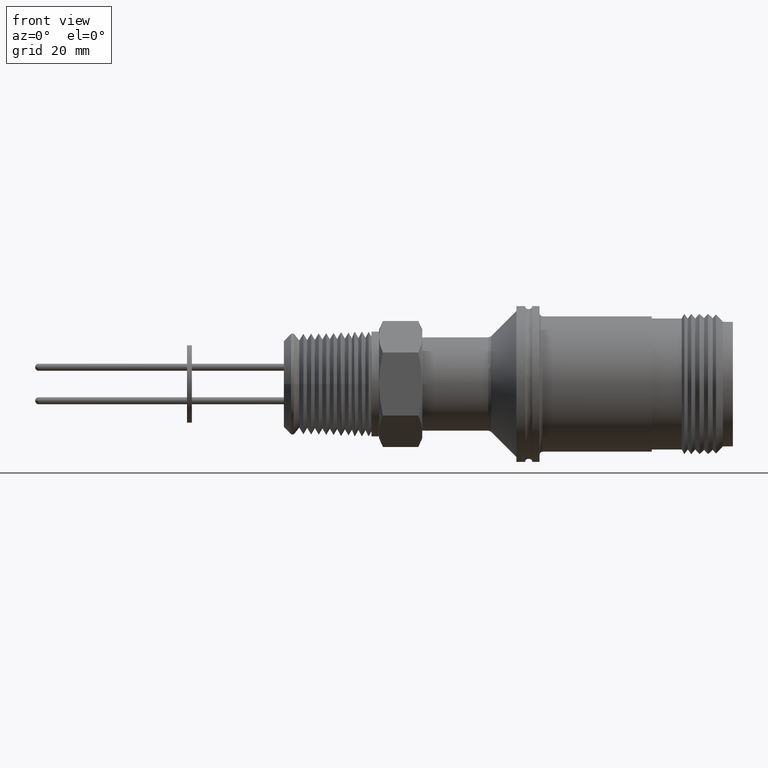
[diagram: clean part render]
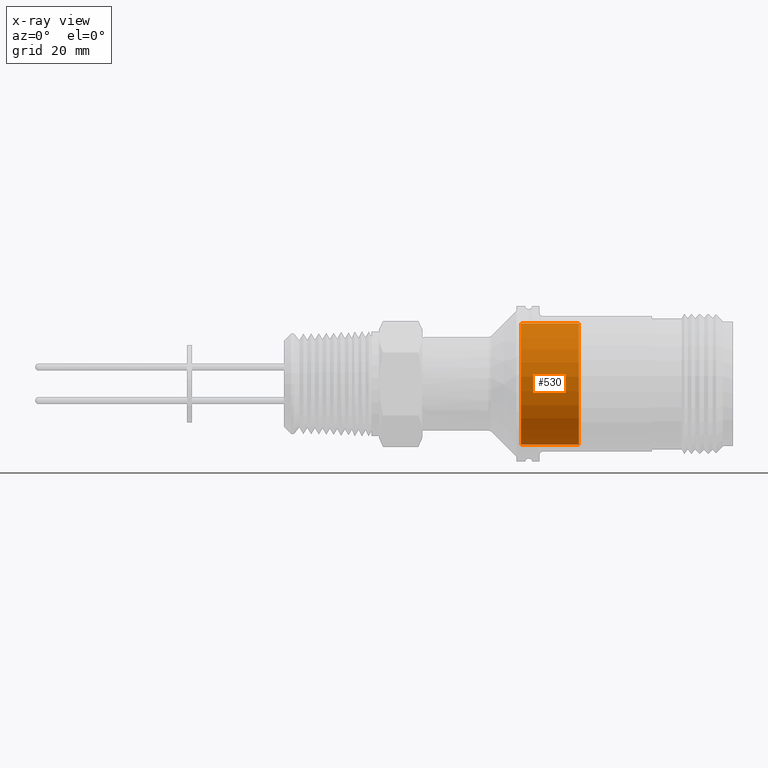
[diagram: x-ray — body ghosted, one internal face saturated and labeled with its STEP entity id]
A machine part, front view, then the same camera in x-ray: the body is ghosted and one INTERNAL B-rep face — a face not visible from any outside direction — is saturated and labeled: STEP entity #530.
In plain terms, the highlighted cylindrical surface (partial cylindrical patch) has radius 12.319 mm, axis along (-1, 0, 0).
Its self-contained STEP definition (entity closure, byte-faithful):
#61 = AXIS2_PLACEMENT_3D ( 'NONE', #2438, #2436, #2435 ) ;
#103 = ORIENTED_EDGE ( 'NONE', *, *, #5327, .F. ) ;
#104 = ORIENTED_EDGE ( 'NONE', *, *, #5372, .F. ) ;
#127 = ORIENTED_EDGE ( 'NONE', *, *, #5371, .T. ) ;
#245 = CARTESIAN_POINT ( 'NONE',  ( 1.714999999999999900, 0.0000000000000000000, 0.4849999999999999300 ) ) ;
#530 = ADVANCED_FACE ( 'NONE', ( #7752 ), #7728, .F. ) ;
#754 = AXIS2_PLACEMENT_3D ( 'NONE', #3568, #3533, #3242 ) ;
#847 = VECTOR ( 'NONE', #2417, 39.37007874015748100 ) ;
#850 = VECTOR ( 'NONE', #2418, 39.37007874015748100 ) ;
#853 = LINE ( 'NONE', #2419, #850 ) ;
#856 = LINE ( 'NONE', #2432, #847 ) ;
#858 = CIRCLE ( 'NONE', #61, 0.4849999999999999300 ) ;
#924 = CIRCLE ( 'NONE', #5513, 0.4849999999999999300 ) ;
#1444 = EDGE_LOOP ( 'NONE', ( #103, #127, #7554, #104 ) ) ;
#2417 = DIRECTION ( 'NONE',  ( -1.000000000000000000, 0.0000000000000000000, 0.0000000000000000000 ) ) ;
#2418 = DIRECTION ( 'NONE',  ( -1.000000000000000000, 0.0000000000000000000, 0.0000000000000000000 ) ) ;
#2419 = CARTESIAN_POINT ( 'NONE',  ( 1.085929328513833200, 5.939536975864662200E-017, -0.4849999999999999300 ) ) ;
#2432 = CARTESIAN_POINT ( 'NONE',  ( 1.085929328513833200, 0.0000000000000000000, 0.4849999999999999300 ) ) ;
#2435 = DIRECTION ( 'NONE',  ( 0.0000000000000000000, 0.0000000000000000000, 1.000000000000000000 ) ) ;
#2436 = DIRECTION ( 'NONE',  ( 1.000000000000000000, -0.0000000000000000000, -0.0000000000000000000 ) ) ;
#2438 = CARTESIAN_POINT ( 'NONE',  ( 1.250000000000000000, 0.0000000000000000000, 0.0000000000000000000 ) ) ;
#2460 = DIRECTION ( 'NONE',  ( 0.0000000000000000000, 0.0000000000000000000, 1.000000000000000000 ) ) ;
#2463 = DIRECTION ( 'NONE',  ( -1.000000000000000000, 0.0000000000000000000, 0.0000000000000000000 ) ) ;
#2464 = CARTESIAN_POINT ( 'NONE',  ( 1.714999999999999900, 0.0000000000000000000, 0.0000000000000000000 ) ) ;
#3242 = DIRECTION ( 'NONE',  ( 0.0000000000000000000, 0.0000000000000000000, 1.000000000000000000 ) ) ;
#3533 = DIRECTION ( 'NONE',  ( -1.000000000000000000, 0.0000000000000000000, 0.0000000000000000000 ) ) ;
#3568 = CARTESIAN_POINT ( 'NONE',  ( 1.085929328513833200, 0.0000000000000000000, 0.0000000000000000000 ) ) ;
#5327 = EDGE_CURVE ( 'NONE', #7269, #6735, #924, .T. ) ;
#5367 = EDGE_CURVE ( 'NONE', #6906, #6943, #858, .T. ) ;
#5371 = EDGE_CURVE ( 'NONE', #7269, #6943, #853, .T. ) ;
#5372 = EDGE_CURVE ( 'NONE', #6735, #6906, #856, .T. ) ;
#5513 = AXIS2_PLACEMENT_3D ( 'NONE', #2464, #2463, #2460 ) ;
#5654 = CARTESIAN_POINT ( 'NONE',  ( 1.250000000000000000, 0.0000000000000000000, 0.4849999999999999300 ) ) ;
#5676 = CARTESIAN_POINT ( 'NONE',  ( 1.250000000000000000, 5.939536975864662200E-017, -0.4849999999999999300 ) ) ;
#5785 = CARTESIAN_POINT ( 'NONE',  ( 1.714999999999999900, 5.939536975864662200E-017, -0.4849999999999999300 ) ) ;
#6735 = VERTEX_POINT ( 'NONE', #245 ) ;
#6906 = VERTEX_POINT ( 'NONE', #5654 ) ;
#6943 = VERTEX_POINT ( 'NONE', #5676 ) ;
#7269 = VERTEX_POINT ( 'NONE', #5785 ) ;
#7554 = ORIENTED_EDGE ( 'NONE', *, *, #5367, .F. ) ;
#7728 = CYLINDRICAL_SURFACE ( 'NONE', #754, 0.4849999999999999300 ) ;
#7752 = FACE_OUTER_BOUND ( 'NONE', #1444, .T. ) ;